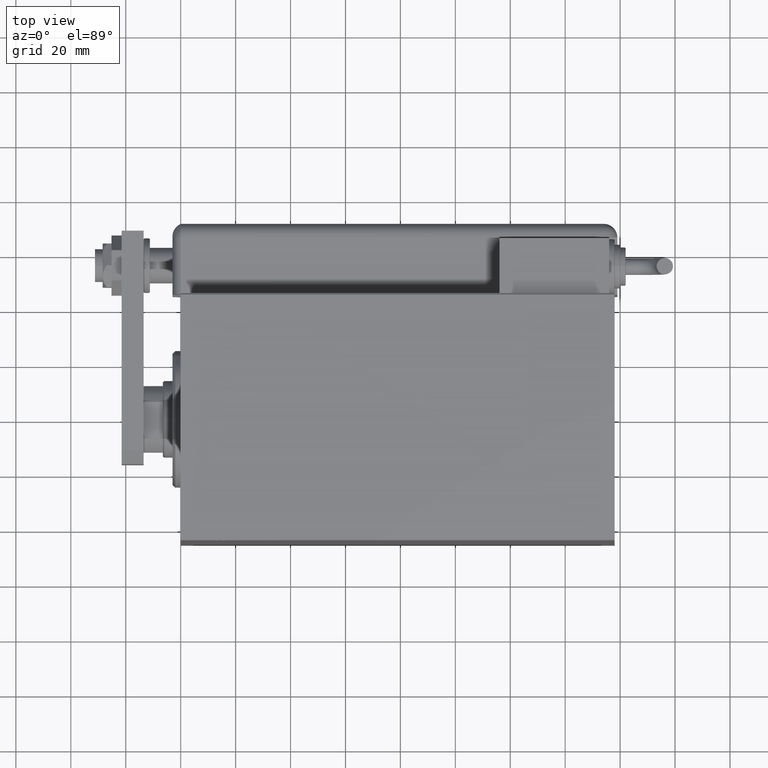
[diagram: clean part render]
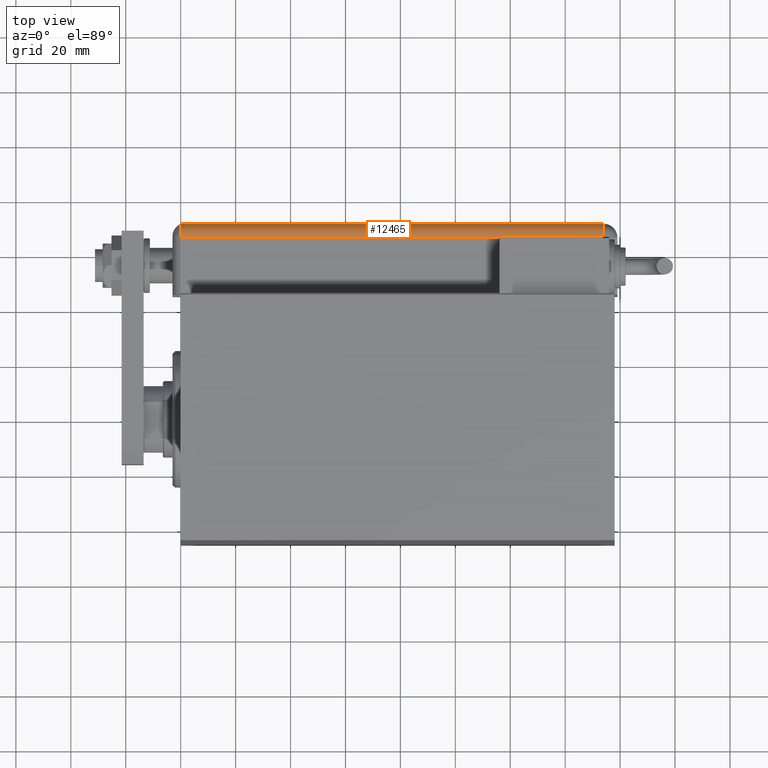
[diagram: same view with one face highlighted and labeled with its STEP entity id]
A machine part, top view. The second image highlights one B-rep face of the part: STEP entity #12465.
In plain terms, the highlighted cylindrical surface (edge-blend (fillet) strip) has radius 5 mm, axis along (1, -0, -0).
Its self-contained STEP definition (entity closure, byte-faithful):
#481 = CARTESIAN_POINT ( 'NONE',  ( 28.99999999999999645, 20.79999999999998650, 159.0000000000000000 ) ) ;
#3250 = CARTESIAN_POINT ( 'NONE',  ( 24.00000000000000000, 20.79999999999998650, 159.0000000000000000 ) ) ;
#3581 = ORIENTED_EDGE ( 'NONE', *, *, #55372, .F. ) ;
#4402 = ORIENTED_EDGE ( 'NONE', *, *, #10548, .F. ) ;
#5056 = DIRECTION ( 'NONE',  ( -1.000000000000000000, 0.000000000000000000, 0.000000000000000000 ) ) ;
#5426 = CARTESIAN_POINT ( 'NONE',  ( 28.99599839871871865, 20.99999999999997868, 159.0000000000000000 ) ) ;
#7365 = EDGE_CURVE ( 'NONE', #38347, #12115, #46701, .T. ) ;
#8648 = CYLINDRICAL_SURFACE ( 'NONE', #22107, 5.000000000000000888 ) ;
#10279 = DIRECTION ( 'NONE',  ( -1.000000000000000000, 0.000000000000000000, 0.000000000000000000 ) ) ;
#10548 = EDGE_CURVE ( 'NONE', #37198, #56342, #20014, .T. ) ;
#10615 = DIRECTION ( 'NONE',  ( -0.000000000000000000, -0.000000000000000000, 1.000000000000000000 ) ) ;
#10687 = CARTESIAN_POINT ( 'NONE',  ( 24.00000000000000000, 25.79999999999998295, 159.0000000000000000 ) ) ;
#12115 = VERTEX_POINT ( 'NONE', #21089 ) ;
#12465 = ADVANCED_FACE ( 'NONE', ( #53841 ), #8648, .T. ) ;
#16029 = CARTESIAN_POINT ( 'NONE',  ( 28.99999999999999645, 20.79999999999998650, 159.0000000000000000 ) ) ;
#16972 = CARTESIAN_POINT ( 'NONE',  ( 24.00000000000000000, 20.79999999999998650, 5.000000000000004441 ) ) ;
#17627 = CIRCLE ( 'NONE', #22437, 5.000000000000000888 ) ;
#17663 = AXIS2_PLACEMENT_3D ( 'NONE', #46329, #28846, #5056 ) ;
#17998 = DIRECTION ( 'NONE',  ( 0.000000000000000000, 0.000000000000000000, -1.000000000000000000 ) ) ;
#18993 = EDGE_LOOP ( 'NONE', ( #57773, #33719, #53237, #4402, #3581, #35992 ) ) ;
#20014 = LINE ( 'NONE', #24255, #58563 ) ;
#21089 = CARTESIAN_POINT ( 'NONE',  ( 28.99599839871871865, 20.99999999999999289, 43.00000000000000000 ) ) ;
#22107 = AXIS2_PLACEMENT_3D ( 'NONE', #3250, #17998, #49622 ) ;
#22437 = AXIS2_PLACEMENT_3D ( 'NONE', #47148, #51948, #43522 ) ;
#24255 = CARTESIAN_POINT ( 'NONE',  ( 24.00000000000000000, 25.79999999999998295, 159.0000000000000000 ) ) ;
#26537 = CARTESIAN_POINT ( 'NONE',  ( 24.00000000000000000, 25.79999999999998295, 5.000000000000004441 ) ) ;
#28846 = DIRECTION ( 'NONE',  ( -0.000000000000000000, -0.000000000000000000, 1.000000000000000000 ) ) ;
#29010 = LINE ( 'NONE', #16029, #45405 ) ;
#30358 = VERTEX_POINT ( 'NONE', #481 ) ;
#32800 = CIRCLE ( 'NONE', #39539, 5.000000000000000888 ) ;
#33719 = ORIENTED_EDGE ( 'NONE', *, *, #7365, .F. ) ;
#34720 = EDGE_CURVE ( 'NONE', #38347, #56342, #32800, .T. ) ;
#35925 = CIRCLE ( 'NONE', #17663, 5.000000000000000888 ) ;
#35954 = VERTEX_POINT ( 'NONE', #57434 ) ;
#35992 = ORIENTED_EDGE ( 'NONE', *, *, #37351, .F. ) ;
#37198 = VERTEX_POINT ( 'NONE', #10687 ) ;
#37351 = EDGE_CURVE ( 'NONE', #35954, #30358, #29010, .T. ) ;
#37521 = DIRECTION ( 'NONE',  ( 0.000000000000000000, 0.000000000000000000, -1.000000000000000000 ) ) ;
#38347 = VERTEX_POINT ( 'NONE', #56057 ) ;
#39539 = AXIS2_PLACEMENT_3D ( 'NONE', #16972, #41929, #10279 ) ;
#41451 = EDGE_CURVE ( 'NONE', #12115, #35954, #17627, .T. ) ;
#41929 = DIRECTION ( 'NONE',  ( -0.000000000000000000, -0.000000000000000000, 1.000000000000000000 ) ) ;
#43522 = DIRECTION ( 'NONE',  ( 1.000000000000000000, -3.261280134836396706E-14, 0.000000000000000000 ) ) ;
#45405 = VECTOR ( 'NONE', #10615, 1000.000000000000000 ) ;
#46329 = CARTESIAN_POINT ( 'NONE',  ( 24.00000000000000000, 20.79999999999998650, 159.0000000000000000 ) ) ;
#46701 = LINE ( 'NONE', #5426, #57653 ) ;
#47148 = CARTESIAN_POINT ( 'NONE',  ( 24.00000000000000000, 20.79999999999998650, 43.00000000000000000 ) ) ;
#49622 = DIRECTION ( 'NONE',  ( -1.000000000000000000, 0.000000000000000000, 0.000000000000000000 ) ) ;
#50042 = DIRECTION ( 'NONE',  ( -0.000000000000000000, -0.000000000000000000, 1.000000000000000000 ) ) ;
#51948 = DIRECTION ( 'NONE',  ( -0.000000000000000000, 0.000000000000000000, -1.000000000000000000 ) ) ;
#53237 = ORIENTED_EDGE ( 'NONE', *, *, #34720, .T. ) ;
#53841 = FACE_OUTER_BOUND ( 'NONE', #18993, .T. ) ;
#55372 = EDGE_CURVE ( 'NONE', #30358, #37198, #35925, .T. ) ;
#56057 = CARTESIAN_POINT ( 'NONE',  ( 28.99599839871871865, 21.00000000000000000, 5.000000000000004441 ) ) ;
#56342 = VERTEX_POINT ( 'NONE', #26537 ) ;
#57434 = CARTESIAN_POINT ( 'NONE',  ( 28.99999999999999645, 20.79999999999998650, 43.00000000000000000 ) ) ;
#57653 = VECTOR ( 'NONE', #50042, 1000.000000000000000 ) ;
#57773 = ORIENTED_EDGE ( 'NONE', *, *, #41451, .F. ) ;
#58563 = VECTOR ( 'NONE', #37521, 1000.000000000000000 ) ;